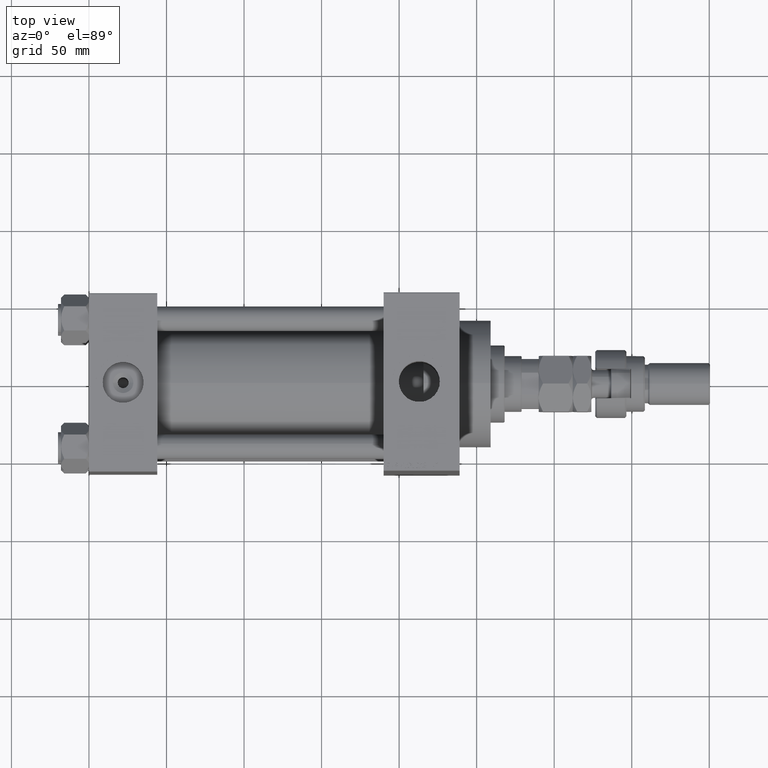
[diagram: clean part render]
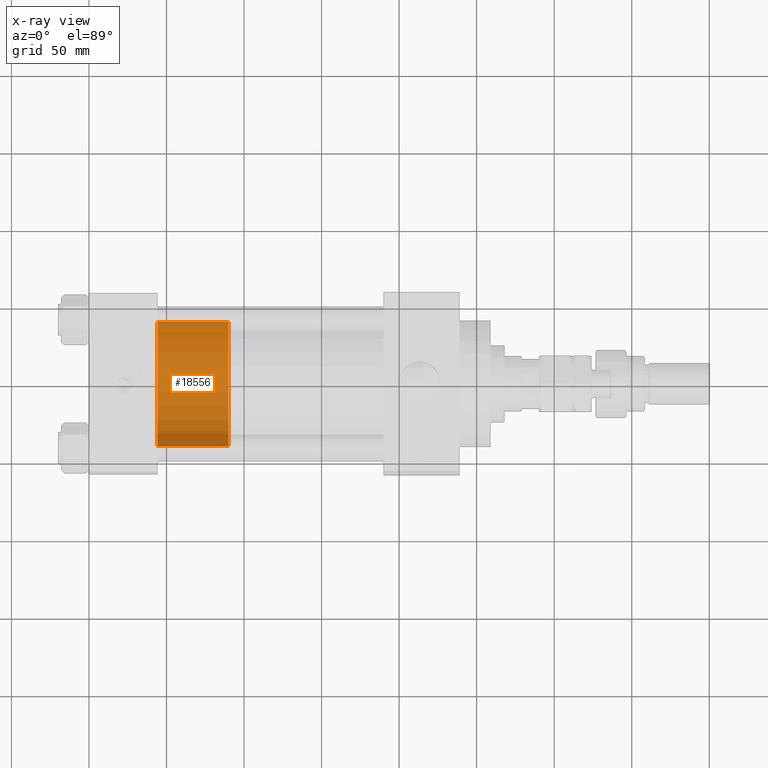
[diagram: x-ray — body ghosted, one internal face saturated and labeled with its STEP entity id]
A machine part, top view, then the same camera in x-ray: the body is ghosted and one INTERNAL B-rep face — a face not visible from any outside direction — is saturated and labeled: STEP entity #18556.
In plain terms, the highlighted cylindrical surface (partial cylindrical patch) has radius 40 mm, axis along (-1, 0, 0).
Its self-contained STEP definition (entity closure, byte-faithful):
#6048 = LINE ( 'NONE', #41214, #27272 ) ;
#7599 = DIRECTION ( 'NONE',  ( -0.000000000000000000, -0.000000000000000000, -1.000000000000000000 ) ) ;
#8419 = VECTOR ( 'NONE', #7599, 1000.000000000000000 ) ;
#8677 = DIRECTION ( 'NONE',  ( -1.000000000000000000, 0.000000000000000000, 0.000000000000000000 ) ) ;
#8742 = DIRECTION ( 'NONE',  ( 1.000000000000000000, 0.000000000000000000, 0.000000000000000000 ) ) ;
#9485 = CARTESIAN_POINT ( 'NONE',  ( 0.000000000000000000, 0.000000000000000000, 46.00000000000000000 ) ) ;
#12284 = CYLINDRICAL_SURFACE ( 'NONE', #37923, 40.00000000000000000 ) ;
#12901 = CIRCLE ( 'NONE', #49752, 40.00000000000000000 ) ;
#13632 = CARTESIAN_POINT ( 'NONE',  ( 0.000000000000000000, 0.000000000000000000, 0.000000000000000000 ) ) ;
#17249 = CARTESIAN_POINT ( 'NONE',  ( 40.00000000000000000, 4.898587196589413026E-15, 46.00000000000000000 ) ) ;
#18556 = ADVANCED_FACE ( 'NONE', ( #28712 ), #12284, .T. ) ;
#19458 = CARTESIAN_POINT ( 'NONE',  ( 40.00000000000000000, 4.898587196589413026E-15, 0.000000000000000000 ) ) ;
#21327 = DIRECTION ( 'NONE',  ( 0.000000000000000000, 0.000000000000000000, 1.000000000000000000 ) ) ;
#21403 = ORIENTED_EDGE ( 'NONE', *, *, #34183, .T. ) ;
#23023 = EDGE_CURVE ( 'NONE', #43361, #32728, #6048, .T. ) ;
#23935 = EDGE_CURVE ( 'NONE', #48648, #42466, #47613, .T. ) ;
#25484 = ORIENTED_EDGE ( 'NONE', *, *, #23935, .T. ) ;
#27272 = VECTOR ( 'NONE', #49167, 1000.000000000000000 ) ;
#28359 = CIRCLE ( 'NONE', #43904, 40.00000000000000000 ) ;
#28712 = FACE_OUTER_BOUND ( 'NONE', #38218, .T. ) ;
#31998 = CARTESIAN_POINT ( 'NONE',  ( 40.00000000000000000, 4.898587196589413026E-15, 46.00000000000000000 ) ) ;
#32728 = VERTEX_POINT ( 'NONE', #38209 ) ;
#34183 = EDGE_CURVE ( 'NONE', #42466, #32728, #28359, .T. ) ;
#36160 = DIRECTION ( 'NONE',  ( -0.000000000000000000, -0.000000000000000000, -1.000000000000000000 ) ) ;
#36253 = ORIENTED_EDGE ( 'NONE', *, *, #40810, .F. ) ;
#36410 = CARTESIAN_POINT ( 'NONE',  ( 0.000000000000000000, 0.000000000000000000, 46.00000000000000000 ) ) ;
#36503 = DIRECTION ( 'NONE',  ( 1.000000000000000000, 0.000000000000000000, 0.000000000000000000 ) ) ;
#37923 = AXIS2_PLACEMENT_3D ( 'NONE', #36410, #36160, #8677 ) ;
#38209 = CARTESIAN_POINT ( 'NONE',  ( -40.00000000000000000, 0.000000000000000000, 0.000000000000000000 ) ) ;
#38218 = EDGE_LOOP ( 'NONE', ( #36253, #25484, #21403, #50195 ) ) ;
#40810 = EDGE_CURVE ( 'NONE', #48648, #43361, #12901, .T. ) ;
#41214 = CARTESIAN_POINT ( 'NONE',  ( -40.00000000000000000, 0.000000000000000000, 46.00000000000000000 ) ) ;
#42466 = VERTEX_POINT ( 'NONE', #19458 ) ;
#43361 = VERTEX_POINT ( 'NONE', #44549 ) ;
#43904 = AXIS2_PLACEMENT_3D ( 'NONE', #13632, #44680, #36503 ) ;
#44549 = CARTESIAN_POINT ( 'NONE',  ( -40.00000000000000000, 0.000000000000000000, 46.00000000000000000 ) ) ;
#44680 = DIRECTION ( 'NONE',  ( 0.000000000000000000, 0.000000000000000000, 1.000000000000000000 ) ) ;
#47613 = LINE ( 'NONE', #31998, #8419 ) ;
#48648 = VERTEX_POINT ( 'NONE', #17249 ) ;
#49167 = DIRECTION ( 'NONE',  ( -0.000000000000000000, -0.000000000000000000, -1.000000000000000000 ) ) ;
#49752 = AXIS2_PLACEMENT_3D ( 'NONE', #9485, #21327, #8742 ) ;
#50195 = ORIENTED_EDGE ( 'NONE', *, *, #23023, .F. ) ;